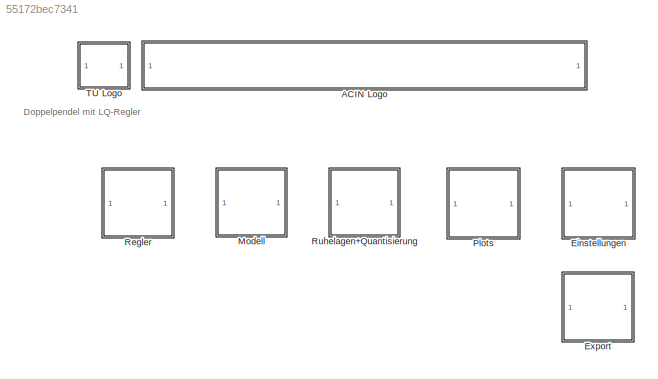
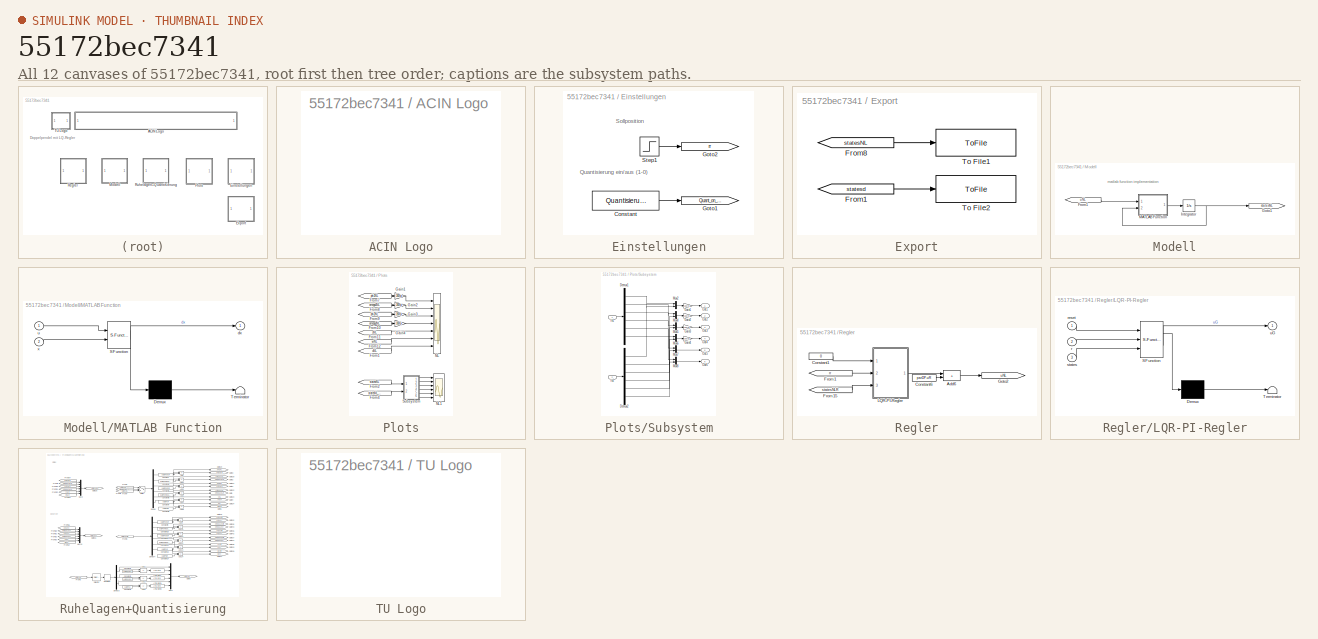
[diagram: thumbnail index - all 12 canvases of the model, root first then tree order]
MODEL slx_55172bec7341
KIND model
CONFIG AbsTol = auto
CONFIG EnableMultiTasking = off
CONFIG FixedStep = auto
CONFIG MaxStep = auto
CONFIG MinStep = auto
CONFIG RelTol = 1e-3
CONFIG SampleTimeConstraint = Unconstrained
CONFIG SolverName = ode45
CONFIG StartTime = 0.0
CONFIG StopTime = 10.0
BLOCK [SubSystem] ACIN Logo
  Ports = []
  RequestExecContextInheritance = off
  UserDataPersistent = on
BLOCK [SubSystem] Einstellungen
  Ports = []
  RequestExecContextInheritance = off
BLOCK [Constant] Einstellungen/Constant
  Value = Quantisierung
BLOCK [Goto] Einstellungen/Goto1
  GotoTag = Quant_on_off
  TagVisibility = global
BLOCK [Goto] Einstellungen/Goto2
  GotoTag = rr
  TagVisibility = global
BLOCK [Step] Einstellungen/Step1
  After = 0.1
  SampleTime = parLQR.Ta
  Time = 3
BLOCK [SubSystem] Export
  Ports = []
  RequestExecContextInheritance = off
BLOCK [From] Export/From1
  CloseFcn = tagdialog Close
  GotoTag = statesd
BLOCK [From] Export/From8
  CloseFcn = tagdialog Close
  GotoTag = statesNL
  TagVisibility = global
BLOCK [ToFile] Export/To File1
  Filename = statesNL
  MatrixName = data
  Ports = [1]
  SampleTime = parDP.Ta
BLOCK [ToFile] Export/To File2
  Filename = statesd
  MatrixName = data
  Ports = [1]
  SampleTime = parDP.Ta
BLOCK [SubSystem] Modell
  Ports = []
  RequestExecContextInheritance = off
BLOCK [From] Modell/From1
  CloseFcn = tagdialog Close
  GotoTag = uNL
  TagVisibility = global
BLOCK [Goto] Modell/Goto1
  GotoTag = statesNL
  TagVisibility = global
BLOCK [Integrator] Modell/Integrator
  InitialCondition = parDP.IC
  Ports = [1, 1]
BLOCK [SubSystem] Modell/MATLAB Function
  ErrorFcn = Stateflow.Translate.translate
  PermitHierarchicalResolution = ExplicitOnly
  Ports = [2, 1]
  RequestExecContextInheritance = off
  SFBlockType = MATLAB Function
  TreatAsAtomicUnit = on
BLOCK [Demux] Modell/MATLAB Function/ Demux 
  Outputs = 1
  Ports = [1, 1]
BLOCK [S-Function] Modell/MATLAB Function/ SFunction 
  EnableBusSupport = on
  FunctionName = sf_sfun
  Parameters = parDP
  PortCounts = [2 2]
  Ports = [2, 2]
  SFcnIsStateOwnerBlock = off
  SFunctionDeploymentMode = off
  Tag = Stateflow S-Function 1
BLOCK [Terminator] Modell/MATLAB Function/ Terminator 
BLOCK [Outport] Modell/MATLAB Function/dx
  VectorParamsAs1DForOutWhenUnconnected = off
BLOCK [Inport] Modell/MATLAB Function/u
BLOCK [Inport] Modell/MATLAB Function/x
  Port = 2
BLOCK [SubSystem] Plots
  Ports = []
  RequestExecContextInheritance = off
BLOCK [From] Plots/From1
  CloseFcn = tagdialog Close
  GotoTag = uNL
  TagVisibility = global
BLOCK [From] Plots/From10
  CloseFcn = tagdialog Close
  GotoTag = omega2NL
  TagVisibility = global
BLOCK [From] Plots/From11
  CloseFcn = tagdialog Close
  GotoTag = sNL
  TagVisibility = global
BLOCK [From] Plots/From12
  CloseFcn = tagdialog Close
  GotoTag = wNL
  TagVisibility = global
BLOCK [From] Plots/From2
  CloseFcn = tagdialog Close
  GotoTag = statesNL
  TagVisibility = global
BLOCK [From] Plots/From4
  CloseFcn = tagdialog Close
  GotoTag = statesNL_quant
  TagVisibility = global
BLOCK [From] Plots/From7
  CloseFcn = tagdialog Close
  GotoTag = phi1NL
  TagVisibility = global
BLOCK [From] Plots/From8
  CloseFcn = tagdialog Close
  GotoTag = omega1NL
  TagVisibility = global
BLOCK [From] Plots/From9
  CloseFcn = tagdialog Close
  GotoTag = phi2NL
  TagVisibility = global
BLOCK [Gain] Plots/Gain1
  Gain = 180/pi
BLOCK [Gain] Plots/Gain2
  Gain = 180/pi
BLOCK [Gain] Plots/Gain3
  Gain = 180/pi
BLOCK [Gain] Plots/Gain4
  Gain = 180/pi
BLOCK [Scope] Plots/NL
  Floating = off
  NumInputPorts = 7
  Ports = [7]
  ScopeSpecificationString = Simulink.scopes.TimeScopeBlockCfg('CurrentConfiguration', extmgr.ConfigurationSet(extmgr.Configuration('Core','General UI',true,'FigureColor',[0.156862745098039 0.156862745098039 0.156862745098039]),extmgr.Configuration('Core','Source UI',true),extmgr.Configuration('Sources','WiredSimulink',true,'DataLoggingVariableName','ScopeData2','DataLoggingSaveFormat','StructureWithTime','DataLoggingDecimati...<+11205ch>
BLOCK [Scope] Plots/NL1
  Floating = off
  NumInputPorts = 6
  Ports = [6]
  ScopeSpecificationString = Simulink.scopes.TimeScopeBlockCfg('CurrentConfiguration', extmgr.ConfigurationSet(extmgr.Configuration('Core','General UI',true,'FigureColor',[0.156862745098039 0.156862745098039 0.156862745098039]),extmgr.Configuration('Core','Source UI',true),extmgr.Configuration('Sources','WiredSimulink',true,'DataLoggingVariableName','ScopeData1','DataLoggingSaveFormat','StructureWithTime','DataLoggingDecimati...<+11258ch>
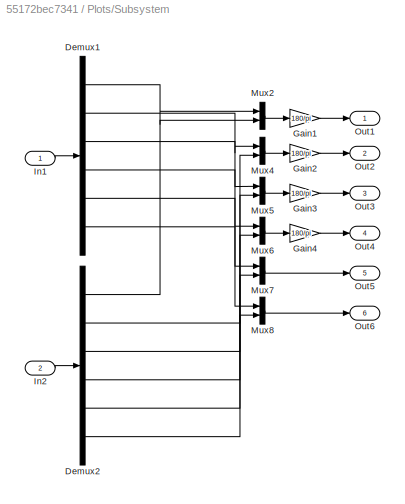
BLOCK [SubSystem] Plots/Subsystem
  Ports = [2, 6]
  RequestExecContextInheritance = off
BLOCK [Demux] Plots/Subsystem/Demux1
  Outputs = 6
  Ports = [1, 6]
BLOCK [Demux] Plots/Subsystem/Demux2
  Outputs = 6
  Ports = [1, 6]
BLOCK [Gain] Plots/Subsystem/Gain1
  Gain = 180/pi
BLOCK [Gain] Plots/Subsystem/Gain2
  Gain = 180/pi
BLOCK [Gain] Plots/Subsystem/Gain3
  Gain = 180/pi
BLOCK [Gain] Plots/Subsystem/Gain4
  Gain = 180/pi
BLOCK [Inport] Plots/Subsystem/In1
BLOCK [Inport] Plots/Subsystem/In2
  Port = 2
BLOCK [Mux] Plots/Subsystem/Mux2
  DisplayOption = bar
  Inputs = 2
  Ports = [2, 1]
BLOCK [Mux] Plots/Subsystem/Mux4
  DisplayOption = bar
  Inputs = 2
  Ports = [2, 1]
BLOCK [Mux] Plots/Subsystem/Mux5
  DisplayOption = bar
  Inputs = 2
  Ports = [2, 1]
BLOCK [Mux] Plots/Subsystem/Mux6
  DisplayOption = bar
  Inputs = 2
  Ports = [2, 1]
BLOCK [Mux] Plots/Subsystem/Mux7
  DisplayOption = bar
  Inputs = 2
  Ports = [2, 1]
BLOCK [Mux] Plots/Subsystem/Mux8
  DisplayOption = bar
  Inputs = 2
  Ports = [2, 1]
BLOCK [Outport] Plots/Subsystem/Out1
  VectorParamsAs1DForOutWhenUnconnected = off
BLOCK [Outport] Plots/Subsystem/Out2
  Port = 2
  VectorParamsAs1DForOutWhenUnconnected = off
BLOCK [Outport] Plots/Subsystem/Out3
  Port = 3
  VectorParamsAs1DForOutWhenUnconnected = off
BLOCK [Outport] Plots/Subsystem/Out4
  Port = 4
  VectorParamsAs1DForOutWhenUnconnected = off
BLOCK [Outport] Plots/Subsystem/Out5
  Port = 5
  VectorParamsAs1DForOutWhenUnconnected = off
BLOCK [Outport] Plots/Subsystem/Out6
  Port = 6
  VectorParamsAs1DForOutWhenUnconnected = off
BLOCK [SubSystem] Regler
  Ports = []
  RequestExecContextInheritance = off
BLOCK [Sum] Regler/Add6
  IconShape = rectangular
  Ports = [2, 1]
BLOCK [Constant] Regler/Constant1
  Value = 0
BLOCK [Constant] Regler/Constant6
  Value = parDP.uR
BLOCK [From] Regler/From1
  CloseFcn = tagdialog Close
  GotoTag = rr
  TagVisibility = global
BLOCK [From] Regler/From15
  CloseFcn = tagdialog Close
  GotoTag = statesNLR
  TagVisibility = global
BLOCK [Goto] Regler/Goto2
  GotoTag = uNL
  TagVisibility = global
BLOCK [SubSystem] Regler/LQR-PI-Regler
  ErrorFcn = Stateflow.Translate.translate
  PermitHierarchicalResolution = ExplicitOnly
  Ports = [3, 1]
  RequestExecContextInheritance = off
  SFBlockType = MATLAB Function
  TreatAsAtomicUnit = on
BLOCK [Demux] Regler/LQR-PI-Regler/ Demux 
  Outputs = 1
  Ports = [1, 1]
BLOCK [S-Function] Regler/LQR-PI-Regler/ SFunction 
  EnableBusSupport = on
  FunctionName = sf_sfun
  Parameters = parLQR
  PortCounts = [3 2]
  Ports = [3, 2]
  SFcnIsStateOwnerBlock = off
  SFunctionDeploymentMode = off
  Tag = Stateflow S-Function 2
BLOCK [Terminator] Regler/LQR-PI-Regler/ Terminator 
BLOCK [Inport] Regler/LQR-PI-Regler/r
  Port = 2
BLOCK [Inport] Regler/LQR-PI-Regler/reset
BLOCK [Inport] Regler/LQR-PI-Regler/states
  Port = 3
BLOCK [Outport] Regler/LQR-PI-Regler/uG
  VectorParamsAs1DForOutWhenUnconnected = off
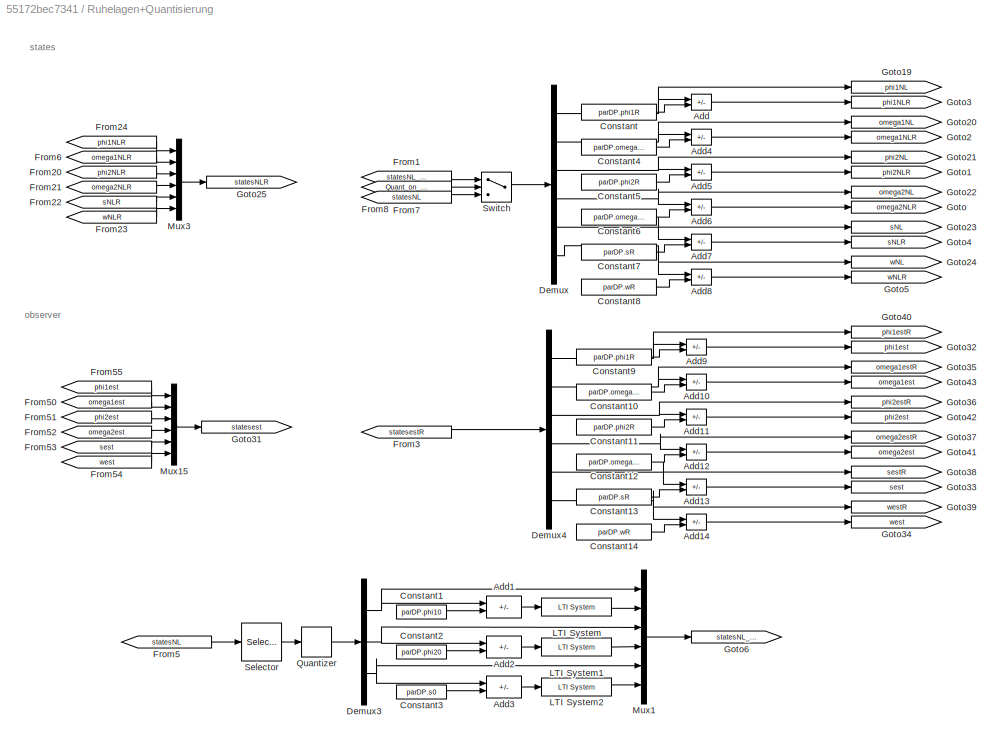
BLOCK [SubSystem] Ruhelagen+Quantisierung
  Ports = []
  RequestExecContextInheritance = off
BLOCK [Sum] Ruhelagen+Quantisierung/Add
  IconShape = rectangular
  Inputs = +-
  Ports = [2, 1]
BLOCK [Sum] Ruhelagen+Quantisierung/Add1
  IconShape = rectangular
  Inputs = +-
  Ports = [2, 1]
BLOCK [Sum] Ruhelagen+Quantisierung/Add10
  IconShape = rectangular
  Inputs = +-
  Ports = [2, 1]
BLOCK [Sum] Ruhelagen+Quantisierung/Add11
  IconShape = rectangular
  Inputs = +-
  Ports = [2, 1]
BLOCK [Sum] Ruhelagen+Quantisierung/Add12
  IconShape = rectangular
  Inputs = +-
  Ports = [2, 1]
BLOCK [Sum] Ruhelagen+Quantisierung/Add13
  IconShape = rectangular
  Inputs = +-
  Ports = [2, 1]
BLOCK [Sum] Ruhelagen+Quantisierung/Add14
  IconShape = rectangular
  Inputs = +-
  Ports = [2, 1]
BLOCK [Sum] Ruhelagen+Quantisierung/Add2
  IconShape = rectangular
  Inputs = +-
  Ports = [2, 1]
BLOCK [Sum] Ruhelagen+Quantisierung/Add3
  IconShape = rectangular
  Inputs = +-
  Ports = [2, 1]
BLOCK [Sum] Ruhelagen+Quantisierung/Add4
  IconShape = rectangular
  Inputs = +-
  Ports = [2, 1]
BLOCK [Sum] Ruhelagen+Quantisierung/Add5
  IconShape = rectangular
  Inputs = +-
  Ports = [2, 1]
BLOCK [Sum] Ruhelagen+Quantisierung/Add6
  IconShape = rectangular
  Inputs = +-
  Ports = [2, 1]
BLOCK [Sum] Ruhelagen+Quantisierung/Add7
  IconShape = rectangular
  Inputs = +-
  Ports = [2, 1]
BLOCK [Sum] Ruhelagen+Quantisierung/Add8
  IconShape = rectangular
  Inputs = +-
  Ports = [2, 1]
BLOCK [Sum] Ruhelagen+Quantisierung/Add9
  IconShape = rectangular
  Inputs = +-
  Ports = [2, 1]
BLOCK [Constant] Ruhelagen+Quantisierung/Constant
  Value = parDP.phi1R
BLOCK [Constant] Ruhelagen+Quantisierung/Constant1
  Value = parDP.phi10
BLOCK [Constant] Ruhelagen+Quantisierung/Constant10
  Value = parDP.omega1R
BLOCK [Constant] Ruhelagen+Quantisierung/Constant11
  Value = parDP.phi2R
BLOCK [Constant] Ruhelagen+Quantisierung/Constant12
  Value = parDP.omega2R
BLOCK [Constant] Ruhelagen+Quantisierung/Constant13
  Value = parDP.sR
BLOCK [Constant] Ruhelagen+Quantisierung/Constant14
  Value = parDP.wR
BLOCK [Constant] Ruhelagen+Quantisierung/Constant2
  Value = parDP.phi20
BLOCK [Constant] Ruhelagen+Quantisierung/Constant3
  Value = parDP.s0
BLOCK [Constant] Ruhelagen+Quantisierung/Constant4
  Value = parDP.omega1R
BLOCK [Constant] Ruhelagen+Quantisierung/Constant5
  Value = parDP.phi2R
BLOCK [Constant] Ruhelagen+Quantisierung/Constant6
  Value = parDP.omega2R
BLOCK [Constant] Ruhelagen+Quantisierung/Constant7
  Value = parDP.sR
BLOCK [Constant] Ruhelagen+Quantisierung/Constant8
  Value = parDP.wR
BLOCK [Constant] Ruhelagen+Quantisierung/Constant9
  Value = parDP.phi1R
BLOCK [Demux] Ruhelagen+Quantisierung/Demux
  Outputs = 6
  Ports = [1, 6]
BLOCK [Demux] Ruhelagen+Quantisierung/Demux3
  Outputs = 3
  Ports = [1, 3]
BLOCK [Demux] Ruhelagen+Quantisierung/Demux4
  Outputs = 6
  Ports = [1, 6]
BLOCK [From] Ruhelagen+Quantisierung/From1
  CloseFcn = tagdialog Close
  GotoTag = statesNL_quant
  TagVisibility = global
BLOCK [From] Ruhelagen+Quantisierung/From20
  CloseFcn = tagdialog Close
  GotoTag = phi2NLR
  TagVisibility = global
BLOCK [From] Ruhelagen+Quantisierung/From21
  CloseFcn = tagdialog Close
  GotoTag = omega2NLR
  TagVisibility = global
BLOCK [From] Ruhelagen+Quantisierung/From22
  CloseFcn = tagdialog Close
  GotoTag = sNLR
  TagVisibility = global
BLOCK [From] Ruhelagen+Quantisierung/From23
  CloseFcn = tagdialog Close
  GotoTag = wNLR
  TagVisibility = global
BLOCK [From] Ruhelagen+Quantisierung/From24
  CloseFcn = tagdialog Close
  GotoTag = phi1NLR
  TagVisibility = global
BLOCK [From] Ruhelagen+Quantisierung/From3
  CloseFcn = tagdialog Close
  GotoTag = statesestR
BLOCK [From] Ruhelagen+Quantisierung/From5
  CloseFcn = tagdialog Close
  GotoTag = statesNL
  TagVisibility = global
BLOCK [From] Ruhelagen+Quantisierung/From50
  CloseFcn = tagdialog Close
  GotoTag = omega1est
  TagVisibility = global
BLOCK [From] Ruhelagen+Quantisierung/From51
  CloseFcn = tagdialog Close
  GotoTag = phi2est
  TagVisibility = global
BLOCK [From] Ruhelagen+Quantisierung/From52
  CloseFcn = tagdialog Close
  GotoTag = omega2est
  TagVisibility = global
BLOCK [From] Ruhelagen+Quantisierung/From53
  CloseFcn = tagdialog Close
  GotoTag = sest
  TagVisibility = global
BLOCK [From] Ruhelagen+Quantisierung/From54
  CloseFcn = tagdialog Close
  GotoTag = west
  TagVisibility = global
BLOCK [From] Ruhelagen+Quantisierung/From55
  CloseFcn = tagdialog Close
  GotoTag = phi1est
  TagVisibility = global
BLOCK [From] Ruhelagen+Quantisierung/From6
  CloseFcn = tagdialog Close
  GotoTag = omega1NLR
  TagVisibility = global
BLOCK [From] Ruhelagen+Quantisierung/From7
  CloseFcn = tagdialog Close
  GotoTag = Quant_on_off
  TagVisibility = global
BLOCK [From] Ruhelagen+Quantisierung/From8
  CloseFcn = tagdialog Close
  GotoTag = statesNL
  TagVisibility = global
BLOCK [Goto] Ruhelagen+Quantisierung/Goto
  GotoTag = omega2NLR
  TagVisibility = global
BLOCK [Goto] Ruhelagen+Quantisierung/Goto1
  GotoTag = phi2NLR
  TagVisibility = global
BLOCK [Goto] Ruhelagen+Quantisierung/Goto19
  GotoTag = phi1NL
  TagVisibility = global
BLOCK [Goto] Ruhelagen+Quantisierung/Goto2
  GotoTag = omega1NLR
  TagVisibility = global
BLOCK [Goto] Ruhelagen+Quantisierung/Goto20
  GotoTag = omega1NL
  TagVisibility = global
BLOCK [Goto] Ruhelagen+Quantisierung/Goto21
  GotoTag = phi2NL
  TagVisibility = global
BLOCK [Goto] Ruhelagen+Quantisierung/Goto22
  GotoTag = omega2NL
  TagVisibility = global
BLOCK [Goto] Ruhelagen+Quantisierung/Goto23
  GotoTag = sNL
  TagVisibility = global
BLOCK [Goto] Ruhelagen+Quantisierung/Goto24
  GotoTag = wNL
  TagVisibility = global
BLOCK [Goto] Ruhelagen+Quantisierung/Goto25
  GotoTag = statesNLR
  TagVisibility = global
BLOCK [Goto] Ruhelagen+Quantisierung/Goto3
  GotoTag = phi1NLR
  TagVisibility = global
BLOCK [Goto] Ruhelagen+Quantisierung/Goto31
  GotoTag = statesest
  TagVisibility = global
BLOCK [Goto] Ruhelagen+Quantisierung/Goto32
  GotoTag = phi1est
  TagVisibility = global
BLOCK [Goto] Ruhelagen+Quantisierung/Goto33
  GotoTag = sest
  TagVisibility = global
BLOCK [Goto] Ruhelagen+Quantisierung/Goto34
  GotoTag = west
  TagVisibility = global
BLOCK [Goto] Ruhelagen+Quantisierung/Goto35
  GotoTag = omega1estR
  TagVisibility = global
BLOCK [Goto] Ruhelagen+Quantisierung/Goto36
  GotoTag = phi2estR
  TagVisibility = global
BLOCK [Goto] Ruhelagen+Quantisierung/Goto37
  GotoTag = omega2estR
  TagVisibility = global
BLOCK [Goto] Ruhelagen+Quantisierung/Goto38
  GotoTag = sestR
  TagVisibility = global
BLOCK [Goto] Ruhelagen+Quantisierung/Goto39
  GotoTag = westR
  TagVisibility = global
BLOCK [Goto] Ruhelagen+Quantisierung/Goto4
  GotoTag = sNLR
  TagVisibility = global
BLOCK [Goto] Ruhelagen+Quantisierung/Goto40
  GotoTag = phi1estR
  TagVisibility = global
BLOCK [Goto] Ruhelagen+Quantisierung/Goto41
  GotoTag = omega2est
  TagVisibility = global
BLOCK [Goto] Ruhelagen+Quantisierung/Goto42
  GotoTag = phi2est
  TagVisibility = global
BLOCK [Goto] Ruhelagen+Quantisierung/Goto43
  GotoTag = omega1est
  TagVisibility = global
BLOCK [Goto] Ruhelagen+Quantisierung/Goto5
  GotoTag = wNLR
  TagVisibility = global
BLOCK [Goto] Ruhelagen+Quantisierung/Goto6
  GotoTag = statesNL_quant
  TagVisibility = global
BLOCK [Reference] Ruhelagen+Quantisierung/LTI System  REF=cstblocks/LTI System
  Ports = [1, 1]
  SourceBlock = cstblocks/LTI System
  SourceProductBaseCode = CT
  SourceType = LTI Block
BLOCK [Reference] Ruhelagen+Quantisierung/LTI System1  REF=cstblocks/LTI System
  Ports = [1, 1]
  SourceBlock = cstblocks/LTI System
  SourceProductBaseCode = CT
  SourceType = LTI Block
BLOCK [Reference] Ruhelagen+Quantisierung/LTI System2  REF=cstblocks/LTI System
  Ports = [1, 1]
  SourceBlock = cstblocks/LTI System
  SourceProductBaseCode = CT
  SourceType = LTI Block
BLOCK [Mux] Ruhelagen+Quantisierung/Mux1
  DisplayOption = bar
  Inputs = 6
  Ports = [6, 1]
BLOCK [Mux] Ruhelagen+Quantisierung/Mux15
  DisplayOption = bar
  Inputs = 6
  Ports = [6, 1]
BLOCK [Mux] Ruhelagen+Quantisierung/Mux3
  DisplayOption = bar
  Inputs = 6
  Ports = [6, 1]
BLOCK [Quantizer] Ruhelagen+Quantisierung/Quantizer
  QuantizationInterval = Phiquantisierung
  SampleTime = parLQR.Ta
BLOCK [Selector] Ruhelagen+Quantisierung/Selector
  IndexOptions = Index vector (dialog)
  Indices = [1 3 5]
  InputPortWidth = 6
  OutputSizes = 1
  Ports = [1, 1]
BLOCK [Switch] Ruhelagen+Quantisierung/Switch
  InputSameDT = off
  SaturateOnIntegerOverflow = off
  Threshold = 0.5
BLOCK [SubSystem] TU Logo
  Ports = []
  RequestExecContextInheritance = off
  UserDataPersistent = on
ANNOTATION (root): Doppelpendel mit LQ-Regler
ANNOTATION Einstellungen: Quantisierung ein/aus (1-0)
ANNOTATION Einstellungen: Sollposition
ANNOTATION Modell: matlab function implementation
ANNOTATION Ruhelagen+Quantisierung: observer
ANNOTATION Ruhelagen+Quantisierung: states
LINE Einstellungen/Constant:1 -> Einstellungen/Goto1:1
LINE Einstellungen/Step1:1 -> Einstellungen/Goto2:1
LINE Export/From1:1 -> Export/To File2:1
LINE Export/From8:1 -> Export/To File1:1
LINE Modell/From1:1 -> Modell/MATLAB Function:1
NET Modell/Integrator:1 -> Modell/Goto1:1, Modell/MATLAB Function:2
LINE Modell/MATLAB Function:1 -> Modell/Integrator:1
LINE Plots/From10:1 -> Plots/Gain4:1
LINE Plots/From11:1 -> Plots/NL:5
LINE Plots/From12:1 -> Plots/NL:6
LINE Plots/From1:1 -> Plots/NL:7
LINE Plots/From2:1 -> Plots/Subsystem:1
LINE Plots/From4:1 -> Plots/Subsystem:2
LINE Plots/From7:1 -> Plots/Gain1:1
LINE Plots/From8:1 -> Plots/Gain2:1
LINE Plots/From9:1 -> Plots/Gain3:1
LINE Plots/Gain1:1 -> Plots/NL:1
LINE Plots/Gain2:1 -> Plots/NL:2
LINE Plots/Gain3:1 -> Plots/NL:3
LINE Plots/Gain4:1 -> Plots/NL:4
LINE Plots/Subsystem/Demux1:1 -> Plots/Subsystem/Mux2:1
LINE Plots/Subsystem/Demux1:2 -> Plots/Subsystem/Mux4:1
LINE Plots/Subsystem/Demux1:3 -> Plots/Subsystem/Mux5:1
LINE Plots/Subsystem/Demux1:4 -> Plots/Subsystem/Mux6:1
LINE Plots/Subsystem/Demux1:5 -> Plots/Subsystem/Mux7:1
LINE Plots/Subsystem/Demux1:6 -> Plots/Subsystem/Mux8:1
LINE Plots/Subsystem/Demux2:1 -> Plots/Subsystem/Mux2:2
LINE Plots/Subsystem/Demux2:2 -> Plots/Subsystem/Mux4:2
LINE Plots/Subsystem/Demux2:3 -> Plots/Subsystem/Mux5:2
LINE Plots/Subsystem/Demux2:4 -> Plots/Subsystem/Mux6:2
LINE Plots/Subsystem/Demux2:5 -> Plots/Subsystem/Mux7:2
LINE Plots/Subsystem/Demux2:6 -> Plots/Subsystem/Mux8:2
LINE Plots/Subsystem/Gain1:1 -> Plots/Subsystem/Out1:1
LINE Plots/Subsystem/Gain2:1 -> Plots/Subsystem/Out2:1
LINE Plots/Subsystem/Gain3:1 -> Plots/Subsystem/Out3:1
LINE Plots/Subsystem/Gain4:1 -> Plots/Subsystem/Out4:1
LINE Plots/Subsystem/In1:1 -> Plots/Subsystem/Demux1:1
LINE Plots/Subsystem/In2:1 -> Plots/Subsystem/Demux2:1
LINE Plots/Subsystem/Mux2:1 -> Plots/Subsystem/Gain1:1
LINE Plots/Subsystem/Mux4:1 -> Plots/Subsystem/Gain2:1
LINE Plots/Subsystem/Mux5:1 -> Plots/Subsystem/Gain3:1
LINE Plots/Subsystem/Mux6:1 -> Plots/Subsystem/Gain4:1
LINE Plots/Subsystem/Mux7:1 -> Plots/Subsystem/Out5:1
LINE Plots/Subsystem/Mux8:1 -> Plots/Subsystem/Out6:1
LINE Plots/Subsystem:1 -> Plots/NL1:1
LINE Plots/Subsystem:2 -> Plots/NL1:2
LINE Plots/Subsystem:3 -> Plots/NL1:3
LINE Plots/Subsystem:4 -> Plots/NL1:4
LINE Plots/Subsystem:5 -> Plots/NL1:5
LINE Plots/Subsystem:6 -> Plots/NL1:6
LINE Regler/Add6:1 -> Regler/Goto2:1
LINE Regler/Constant1:1 -> Regler/LQR-PI-Regler:1
LINE Regler/Constant6:1 -> Regler/Add6:2
LINE Regler/From15:1 -> Regler/LQR-PI-Regler:3
LINE Regler/From1:1 -> Regler/LQR-PI-Regler:2
LINE Regler/LQR-PI-Regler:1 -> Regler/Add6:1
LINE Ruhelagen+Quantisierung/Add10:1 -> Ruhelagen+Quantisierung/Goto43:1
LINE Ruhelagen+Quantisierung/Add11:1 -> Ruhelagen+Quantisierung/Goto42:1
LINE Ruhelagen+Quantisierung/Add12:1 -> Ruhelagen+Quantisierung/Goto41:1
LINE Ruhelagen+Quantisierung/Add13:1 -> Ruhelagen+Quantisierung/Goto33:1
LINE Ruhelagen+Quantisierung/Add14:1 -> Ruhelagen+Quantisierung/Goto34:1
LINE Ruhelagen+Quantisierung/Add1:1 -> Ruhelagen+Quantisierung/LTI System:1
LINE Ruhelagen+Quantisierung/Add2:1 -> Ruhelagen+Quantisierung/LTI System1:1
LINE Ruhelagen+Quantisierung/Add3:1 -> Ruhelagen+Quantisierung/LTI System2:1
LINE Ruhelagen+Quantisierung/Add4:1 -> Ruhelagen+Quantisierung/Goto2:1
LINE Ruhelagen+Quantisierung/Add5:1 -> Ruhelagen+Quantisierung/Goto1:1
LINE Ruhelagen+Quantisierung/Add6:1 -> Ruhelagen+Quantisierung/Goto:1
LINE Ruhelagen+Quantisierung/Add7:1 -> Ruhelagen+Quantisierung/Goto4:1
LINE Ruhelagen+Quantisierung/Add8:1 -> Ruhelagen+Quantisierung/Goto5:1
LINE Ruhelagen+Quantisierung/Add9:1 -> Ruhelagen+Quantisierung/Goto32:1
LINE Ruhelagen+Quantisierung/Add:1 -> Ruhelagen+Quantisierung/Goto3:1
LINE Ruhelagen+Quantisierung/Constant10:1 -> Ruhelagen+Quantisierung/Add10:2
LINE Ruhelagen+Quantisierung/Constant11:1 -> Ruhelagen+Quantisierung/Add11:2
LINE Ruhelagen+Quantisierung/Constant12:1 -> Ruhelagen+Quantisierung/Add12:2
LINE Ruhelagen+Quantisierung/Constant13:1 -> Ruhelagen+Quantisierung/Add13:2
LINE Ruhelagen+Quantisierung/Constant14:1 -> Ruhelagen+Quantisierung/Add14:2
LINE Ruhelagen+Quantisierung/Constant1:1 -> Ruhelagen+Quantisierung/Add1:2
LINE Ruhelagen+Quantisierung/Constant2:1 -> Ruhelagen+Quantisierung/Add2:2
LINE Ruhelagen+Quantisierung/Constant3:1 -> Ruhelagen+Quantisierung/Add3:2
LINE Ruhelagen+Quantisierung/Constant4:1 -> Ruhelagen+Quantisierung/Add4:2
LINE Ruhelagen+Quantisierung/Constant5:1 -> Ruhelagen+Quantisierung/Add5:2
LINE Ruhelagen+Quantisierung/Constant6:1 -> Ruhelagen+Quantisierung/Add6:2
LINE Ruhelagen+Quantisierung/Constant7:1 -> Ruhelagen+Quantisierung/Add7:2
LINE Ruhelagen+Quantisierung/Constant8:1 -> Ruhelagen+Quantisierung/Add8:2
LINE Ruhelagen+Quantisierung/Constant9:1 -> Ruhelagen+Quantisierung/Add9:2
LINE Ruhelagen+Quantisierung/Constant:1 -> Ruhelagen+Quantisierung/Add:2
NET Ruhelagen+Quantisierung/Demux3:1 -> Ruhelagen+Quantisierung/Add1:1, Ruhelagen+Quantisierung/Mux1:1
NET Ruhelagen+Quantisierung/Demux3:2 -> Ruhelagen+Quantisierung/Add2:1, Ruhelagen+Quantisierung/Mux1:3
NET Ruhelagen+Quantisierung/Demux3:3 -> Ruhelagen+Quantisierung/Add3:1, Ruhelagen+Quantisierung/Mux1:5
NET Ruhelagen+Quantisierung/Demux4:1 -> Ruhelagen+Quantisierung/Add9:1, Ruhelagen+Quantisierung/Goto40:1
NET Ruhelagen+Quantisierung/Demux4:2 -> Ruhelagen+Quantisierung/Add10:1, Ruhelagen+Quantisierung/Goto35:1
NET Ruhelagen+Quantisierung/Demux4:3 -> Ruhelagen+Quantisierung/Add11:1, Ruhelagen+Quantisierung/Goto36:1
NET Ruhelagen+Quantisierung/Demux4:4 -> Ruhelagen+Quantisierung/Add12:1, Ruhelagen+Quantisierung/Goto37:1
NET Ruhelagen+Quantisierung/Demux4:5 -> Ruhelagen+Quantisierung/Add13:1, Ruhelagen+Quantisierung/Goto38:1
NET Ruhelagen+Quantisierung/Demux4:6 -> Ruhelagen+Quantisierung/Add14:1, Ruhelagen+Quantisierung/Goto39:1
NET Ruhelagen+Quantisierung/Demux:1 -> Ruhelagen+Quantisierung/Add:1, Ruhelagen+Quantisierung/Goto19:1
NET Ruhelagen+Quantisierung/Demux:2 -> Ruhelagen+Quantisierung/Add4:1, Ruhelagen+Quantisierung/Goto20:1
NET Ruhelagen+Quantisierung/Demux:3 -> Ruhelagen+Quantisierung/Add5:1, Ruhelagen+Quantisierung/Goto21:1
NET Ruhelagen+Quantisierung/Demux:4 -> Ruhelagen+Quantisierung/Add6:1, Ruhelagen+Quantisierung/Goto22:1
NET Ruhelagen+Quantisierung/Demux:5 -> Ruhelagen+Quantisierung/Add7:1, Ruhelagen+Quantisierung/Goto23:1
NET Ruhelagen+Quantisierung/Demux:6 -> Ruhelagen+Quantisierung/Add8:1, Ruhelagen+Quantisierung/Goto24:1
LINE Ruhelagen+Quantisierung/From1:1 -> Ruhelagen+Quantisierung/Switch:1
LINE Ruhelagen+Quantisierung/From20:1 -> Ruhelagen+Quantisierung/Mux3:3
LINE Ruhelagen+Quantisierung/From21:1 -> Ruhelagen+Quantisierung/Mux3:4
LINE Ruhelagen+Quantisierung/From22:1 -> Ruhelagen+Quantisierung/Mux3:5
LINE Ruhelagen+Quantisierung/From23:1 -> Ruhelagen+Quantisierung/Mux3:6
LINE Ruhelagen+Quantisierung/From24:1 -> Ruhelagen+Quantisierung/Mux3:1
LINE Ruhelagen+Quantisierung/From3:1 -> Ruhelagen+Quantisierung/Demux4:1
LINE Ruhelagen+Quantisierung/From50:1 -> Ruhelagen+Quantisierung/Mux15:2
LINE Ruhelagen+Quantisierung/From51:1 -> Ruhelagen+Quantisierung/Mux15:3
LINE Ruhelagen+Quantisierung/From52:1 -> Ruhelagen+Quantisierung/Mux15:4
LINE Ruhelagen+Quantisierung/From53:1 -> Ruhelagen+Quantisierung/Mux15:5
LINE Ruhelagen+Quantisierung/From54:1 -> Ruhelagen+Quantisierung/Mux15:6
LINE Ruhelagen+Quantisierung/From55:1 -> Ruhelagen+Quantisierung/Mux15:1
LINE Ruhelagen+Quantisierung/From5:1 -> Ruhelagen+Quantisierung/Selector:1
LINE Ruhelagen+Quantisierung/From6:1 -> Ruhelagen+Quantisierung/Mux3:2
LINE Ruhelagen+Quantisierung/From7:1 -> Ruhelagen+Quantisierung/Switch:2
LINE Ruhelagen+Quantisierung/From8:1 -> Ruhelagen+Quantisierung/Switch:3
LINE Ruhelagen+Quantisierung/LTI System1:1 -> Ruhelagen+Quantisierung/Mux1:4
LINE Ruhelagen+Quantisierung/LTI System2:1 -> Ruhelagen+Quantisierung/Mux1:6
LINE Ruhelagen+Quantisierung/LTI System:1 -> Ruhelagen+Quantisierung/Mux1:2
LINE Ruhelagen+Quantisierung/Mux15:1 -> Ruhelagen+Quantisierung/Goto31:1
LINE Ruhelagen+Quantisierung/Mux1:1 -> Ruhelagen+Quantisierung/Goto6:1
LINE Ruhelagen+Quantisierung/Mux3:1 -> Ruhelagen+Quantisierung/Goto25:1
LINE Ruhelagen+Quantisierung/Quantizer:1 -> Ruhelagen+Quantisierung/Demux3:1
LINE Ruhelagen+Quantisierung/Selector:1 -> Ruhelagen+Quantisierung/Quantizer:1
LINE Ruhelagen+Quantisierung/Switch:1 -> Ruhelagen+Quantisierung/Demux:1
note: NET lines group one-source signal fan-out (src -> all destinations, sorted); 1:1 wires keep LINE
CHART Modell/MATLAB Function states=1 transitions=1
  STATE_LABEL 'eML_blk_kernel()'
  STATE_LABEL 'SCRIPT:\nfunction dx = fcnDoppelpendel(u,x,parDP)\n    %#codegen\n    % calculates rhs of ODE\n    dx = Doppelpendel_NL_mfun(u,x,parDP);\nend'
CHART Regler/LQR-PI-Regler states=1 transitions=1
  STATE_LABEL 'eML_blk_kernel()'
  STATE_LABEL 'SCRIPT:\nfunction uG  = LQR(reset,r,states,parLQR)\n%Anfangsbedingung I-Anteil\npersistent xI\n\nif isempty(xI) xI = double(0); end\n% Folgendes hier bitte ausführen:\n% 1.) PI-Zustandsregler einfügen\n% 2.) if (reset==1) xI=0; end\n\nxI = xI+(r-states(5));\n\nif (reset==1) \n    xI=0; \nend\n\n%Gesamtrückführung\nuG=[parLQR.kx, parLQR.kI]*[states; xI];'
CHART  states=0 transitions=0
CHART  states=0 transitions=0
